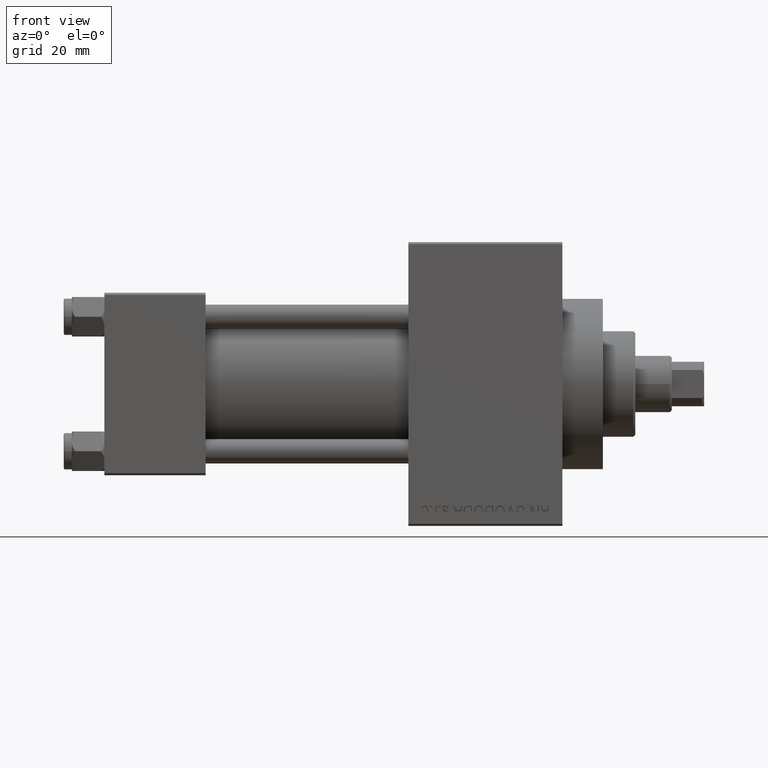
[diagram: clean part render]
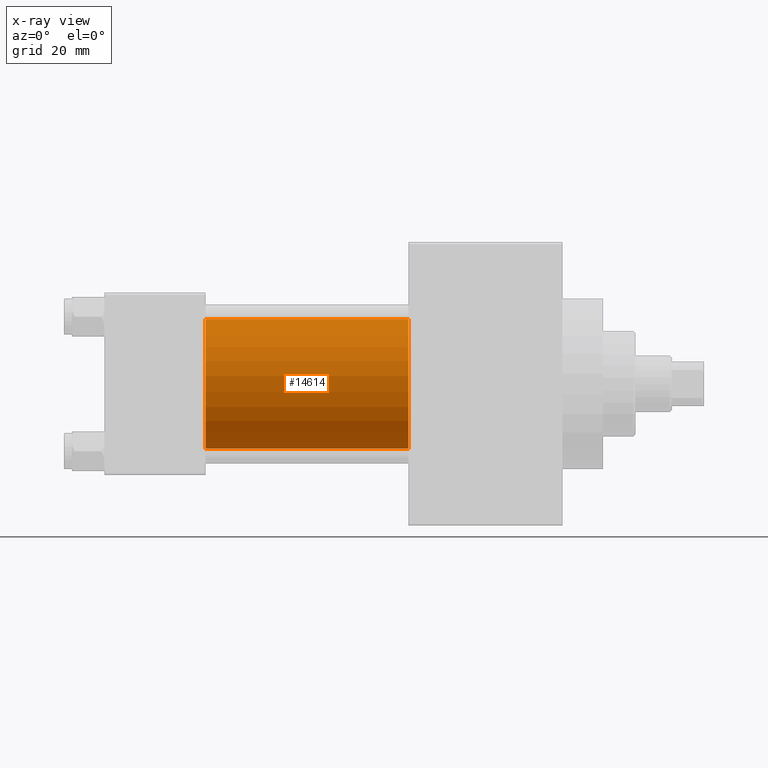
[diagram: x-ray — body ghosted, one internal face saturated and labeled with its STEP entity id]
A machine part, front view, then the same camera in x-ray: the body is ghosted and one INTERNAL B-rep face — a face not visible from any outside direction — is saturated and labeled: STEP entity #14614.
In plain terms, the highlighted cylindrical surface (partial cylindrical patch) has radius 16 mm, axis along (-1, -0, -0).
Its self-contained STEP definition (entity closure, byte-faithful):
#1126 = DIRECTION ( 'NONE',  ( 1.000000000000000000, 0.000000000000000000, 0.000000000000000000 ) ) ;
#3047 = DIRECTION ( 'NONE',  ( 0.000000000000000000, 0.000000000000000000, 1.000000000000000000 ) ) ;
#3543 = DIRECTION ( 'NONE',  ( -1.000000000000000000, -0.000000000000000000, -0.000000000000000000 ) ) ;
#4831 = CARTESIAN_POINT ( 'NONE',  ( 25.00000000000000000, -6.426503353294456087E-16, -16.00000000000000000 ) ) ;
#5106 = CARTESIAN_POINT ( 'NONE',  ( 75.00000000000001421, -2.602085213965210642E-15, 0.000000000000000000 ) ) ;
#5668 = VERTEX_POINT ( 'NONE', #35995 ) ;
#5850 = LINE ( 'NONE', #36157, #37933 ) ;
#8796 = AXIS2_PLACEMENT_3D ( 'NONE', #36834, #3543, #3047 ) ;
#11273 = AXIS2_PLACEMENT_3D ( 'NONE', #48860, #38425, #45869 ) ;
#11466 = EDGE_CURVE ( 'NONE', #5668, #46182, #24942, .T. ) ;
#14614 = ADVANCED_FACE ( 'NONE', ( #25382 ), #48003, .F. ) ;
#16028 = DIRECTION ( 'NONE',  ( 0.000000000000000000, 0.000000000000000000, -1.000000000000000000 ) ) ;
#16758 = CARTESIAN_POINT ( 'NONE',  ( 75.00000000000001421, -2.602085213965210642E-15, 16.00000000000000000 ) ) ;
#21163 = EDGE_CURVE ( 'NONE', #5668, #25454, #47966, .T. ) ;
#23010 = ORIENTED_EDGE ( 'NONE', *, *, #33043, .T. ) ;
#24360 = ORIENTED_EDGE ( 'NONE', *, *, #21163, .T. ) ;
#24698 = DIRECTION ( 'NONE',  ( -1.000000000000000000, -0.000000000000000000, -0.000000000000000000 ) ) ;
#24744 = CIRCLE ( 'NONE', #11273, 16.00000000000000000 ) ;
#24942 = LINE ( 'NONE', #16758, #40505 ) ;
#25382 = FACE_OUTER_BOUND ( 'NONE', #43893, .T. ) ;
#25454 = VERTEX_POINT ( 'NONE', #27314 ) ;
#27314 = CARTESIAN_POINT ( 'NONE',  ( 75.00000000000001421, -6.426503353294456087E-16, -16.00000000000000000 ) ) ;
#30478 = AXIS2_PLACEMENT_3D ( 'NONE', #5106, #1126, #16028 ) ;
#31668 = CARTESIAN_POINT ( 'NONE',  ( 25.00000000000000000, -2.602085213965210642E-15, 16.00000000000000000 ) ) ;
#33043 = EDGE_CURVE ( 'NONE', #25454, #40131, #5850, .T. ) ;
#35995 = CARTESIAN_POINT ( 'NONE',  ( 75.00000000000001421, -2.602085213965210642E-15, 16.00000000000000000 ) ) ;
#36157 = CARTESIAN_POINT ( 'NONE',  ( 75.00000000000001421, -6.426503353294456087E-16, -16.00000000000000000 ) ) ;
#36834 = CARTESIAN_POINT ( 'NONE',  ( 75.00000000000001421, -2.602085213965210642E-15, 0.000000000000000000 ) ) ;
#37933 = VECTOR ( 'NONE', #40621, 1000.000000000000000 ) ;
#38425 = DIRECTION ( 'NONE',  ( 1.000000000000000000, 0.000000000000000000, 0.000000000000000000 ) ) ;
#40131 = VERTEX_POINT ( 'NONE', #4831 ) ;
#40505 = VECTOR ( 'NONE', #24698, 1000.000000000000000 ) ;
#40621 = DIRECTION ( 'NONE',  ( -1.000000000000000000, -0.000000000000000000, -0.000000000000000000 ) ) ;
#43893 = EDGE_LOOP ( 'NONE', ( #24360, #23010, #45266, #45380 ) ) ;
#45266 = ORIENTED_EDGE ( 'NONE', *, *, #47923, .F. ) ;
#45380 = ORIENTED_EDGE ( 'NONE', *, *, #11466, .F. ) ;
#45869 = DIRECTION ( 'NONE',  ( 0.000000000000000000, 0.000000000000000000, -1.000000000000000000 ) ) ;
#46182 = VERTEX_POINT ( 'NONE', #31668 ) ;
#47923 = EDGE_CURVE ( 'NONE', #46182, #40131, #24744, .T. ) ;
#47966 = CIRCLE ( 'NONE', #30478, 16.00000000000000000 ) ;
#48003 = CYLINDRICAL_SURFACE ( 'NONE', #8796, 16.00000000000000000 ) ;
#48860 = CARTESIAN_POINT ( 'NONE',  ( 25.00000000000000000, -2.602085213965210642E-15, 0.000000000000000000 ) ) ;